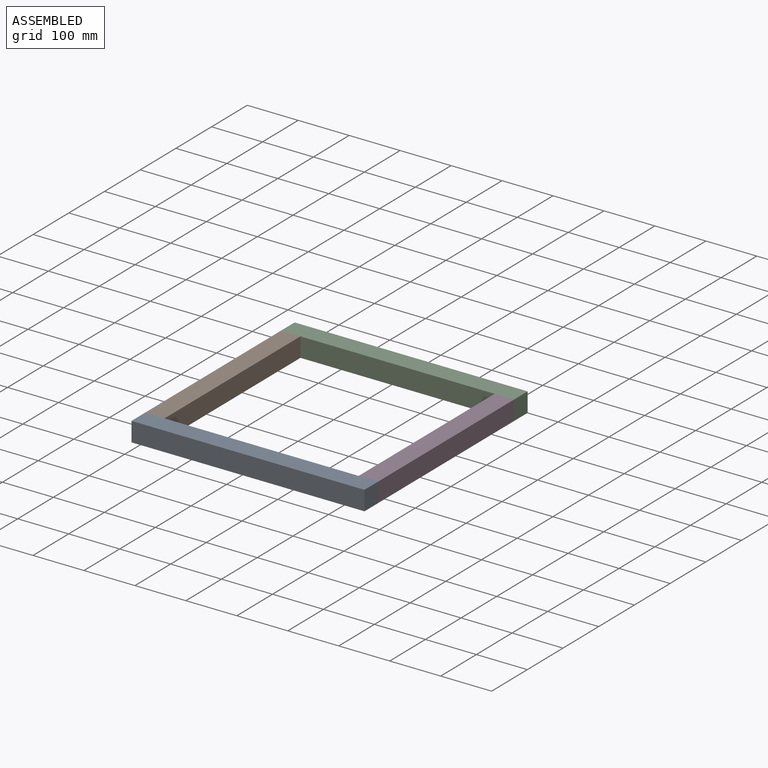
[diagram: assembled view]
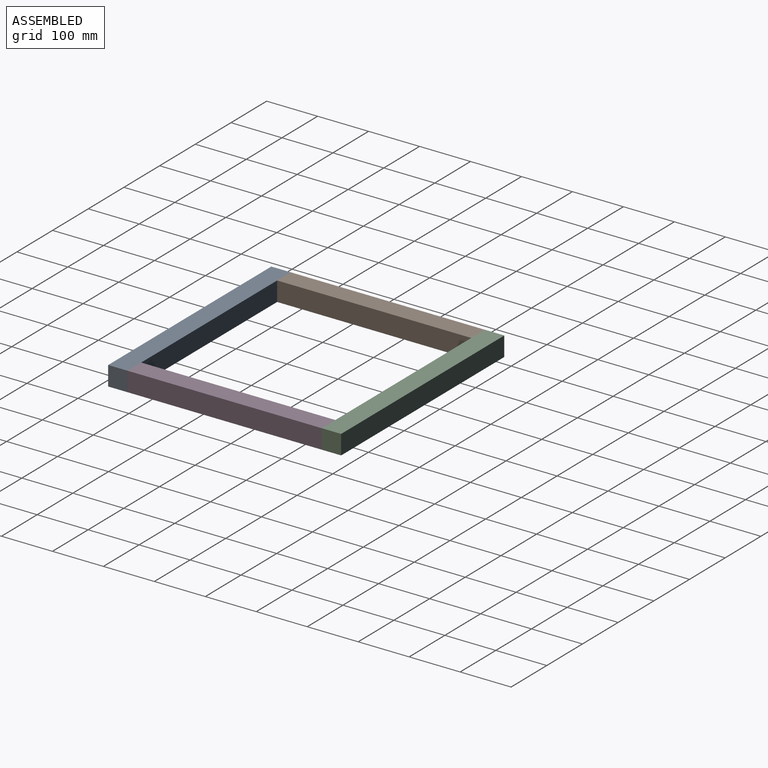
[diagram: assembled view, second angle]
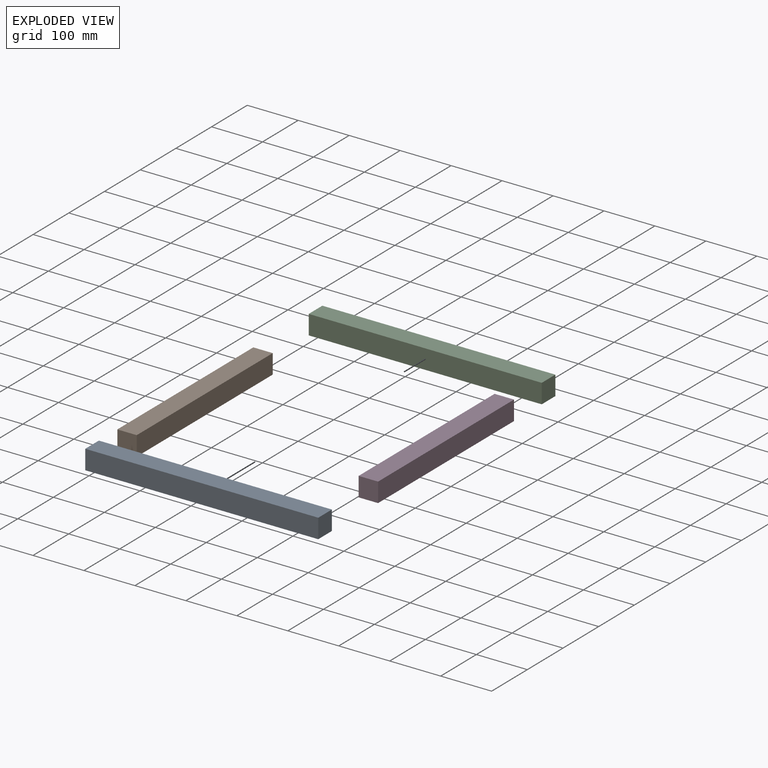
[diagram: exploded view]
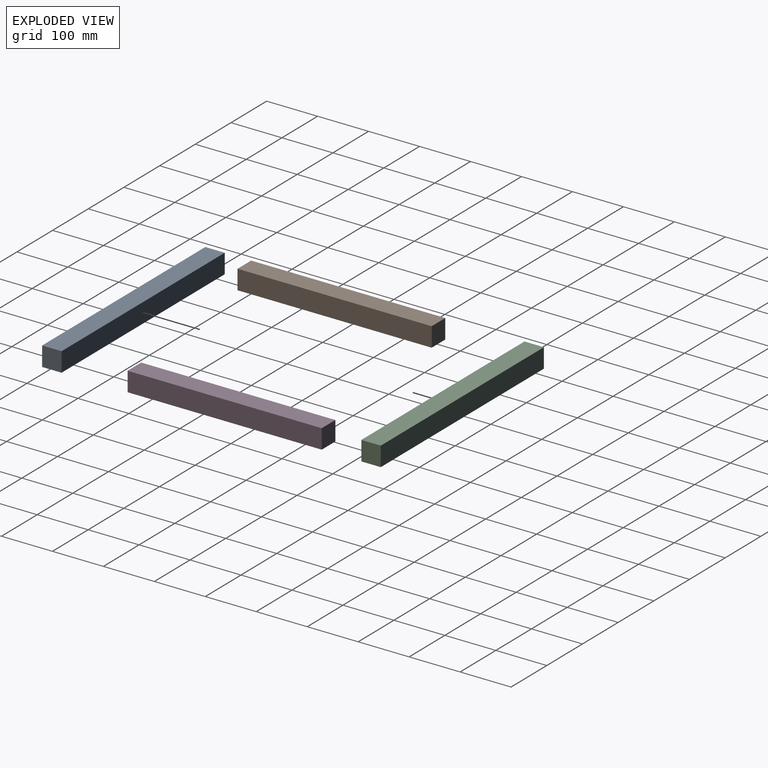
[diagram: exploded view, second angle]
ASSEMBLY  parts=4 mates=3
PART A: 6 faces, bbox 457.2x38.1x38.1 mm
  f0: plane 38.1x38.1mm, normal (-1,0,0), area 1451.6mm2, adj f1,f3,f4,f5
  f1: plane 457.2x38.1mm, normal (0,0,-1), area 17419.3mm2, adj f0,f2,f4,f5
  f2: plane 38.1x38.1mm, normal (1,0,0), area 1451.6mm2, adj f1,f3,f4,f5
  f3: plane 457.2x38.1mm, normal (0,0,1), area 17419.3mm2, adj f0,f2,f4,f5
  f4: plane 457.2x38.1mm, normal (0,-1,0), area 17419.3mm2, adj f0,f1,f2,f3
  f5: plane 457.2x38.1mm, normal (0,1,0), area 17419.3mm2, adj f0,f1,f2,f3
PART B: 6 faces, bbox 381x38.1x38.1 mm
  f0: plane 381x38.1mm, normal (0,0,-1), area 14516.1mm2, adj f1,f3,f4,f5
  f1: plane 38.1x38.1mm, normal (1,0,0), area 1451.6mm2, adj f0,f2,f4,f5
  f2: plane 381x38.1mm, normal (0,0,1), area 14516.1mm2, adj f1,f3,f4,f5
  f3: plane 38.1x38.1mm, normal (-1,0,0), area 1451.6mm2, adj f0,f2,f4,f5
  f4: plane 381x38.1mm, normal (0,-1,0), area 14516.1mm2, adj f0,f1,f2,f3
  f5: plane 381x38.1mm, normal (0,1,0), area 14516.1mm2, adj f0,f1,f2,f3
PART C: same geometry as A
PART D: same geometry as B
PLACE A t=(23.67,-355.06,75.56)mm
PLACE B rot(axis=(0,0,-1),90deg) t=(-185.88,-145.51,75.56)mm
PLACE C t=(23.67,64.04,75.56)mm
PLACE D rot(axis=(0,0,1),90deg) t=(233.22,-145.51,75.56)mm
MATE fastened D.f1 <-> C.f4  axis (0,1,0) through (252.27,44.99,56.51)mm
MATE fastened A.f5 <-> B.f1  axis (0,1,0) through (-204.93,-336.01,56.51)mm
MATE fastened B.f3 <-> C.f4  axis (0,1,0) through (-204.93,44.99,56.51)mm
